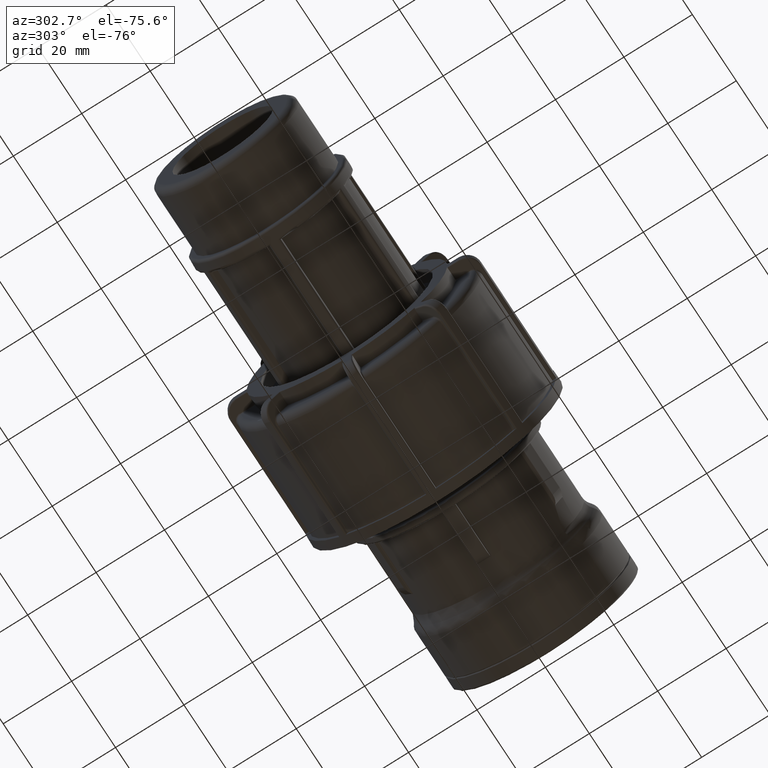
[diagram: clean part render]
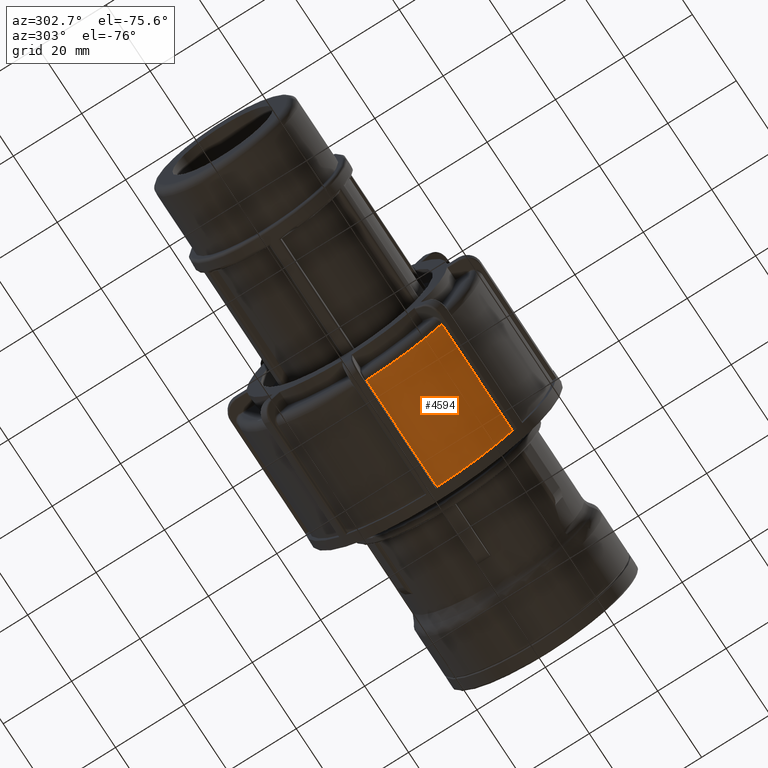
[diagram: same view with one face highlighted and labeled with its STEP entity id]
A machine part, auxiliary view. The second image highlights one B-rep face of the part: STEP entity #4594.
In plain terms, the highlighted cylindrical surface (partial cylindrical patch) has radius 35.599 mm, axis along (1, 0, 0).
Its self-contained STEP definition (entity closure, byte-faithful):
#321=LINE('',#7875,#600);
#342=LINE('',#8138,#621);
#600=VECTOR('',#5764,32.1245);
#621=VECTOR('',#5853,32.1245);
#831=CYLINDRICAL_SURFACE('',#5071,35.599);
#1079=FACE_OUTER_BOUND('',#1365,.T.);
#1365=EDGE_LOOP('',(#4230,#4231,#4232,#4233));
#1696=CIRCLE('',#4868,35.599);
#1796=CIRCLE('',#5072,35.599);
#2100=VERTEX_POINT('',#7859);
#2101=VERTEX_POINT('',#7872);
#2105=VERTEX_POINT('',#7883);
#2130=VERTEX_POINT('',#8136);
#2645=EDGE_CURVE('',#2101,#2100,#321,.T.);
#2651=EDGE_CURVE('',#2105,#2101,#1696,.T.);
#2696=EDGE_CURVE('',#2130,#2105,#342,.T.);
#2934=EDGE_CURVE('',#2100,#2130,#1796,.T.);
#4230=ORIENTED_EDGE('',*,*,#2645,.F.);
#4231=ORIENTED_EDGE('',*,*,#2651,.F.);
#4232=ORIENTED_EDGE('',*,*,#2696,.F.);
#4233=ORIENTED_EDGE('',*,*,#2934,.F.);
#4594=ADVANCED_FACE('',(#1079),#831,.T.);
#4868=AXIS2_PLACEMENT_3D('',#7885,#5774,#5775);
#5071=AXIS2_PLACEMENT_3D('',#9463,#6290,#6291);
#5072=AXIS2_PLACEMENT_3D('',#9464,#6292,#6293);
#5764=DIRECTION('',(-1.,0.,0.));
#5774=DIRECTION('center_axis',(1.,0.,0.));
#5775=DIRECTION('ref_axis',(0.,0.,-1.));
#5853=DIRECTION('',(1.,0.,0.));
#6290=DIRECTION('center_axis',(1.,0.,0.));
#6291=DIRECTION('ref_axis',(0.,1.,0.));
#6292=DIRECTION('center_axis',(-1.,0.,0.));
#6293=DIRECTION('ref_axis',(0.,-1.,1.83697019872103E-16));
#7859=CARTESIAN_POINT('',(-84.3095,-1.8162755102041,-35.5526362492436));
#7872=CARTESIAN_POINT('',(-52.185,-1.8162755102041,-35.5526362492436));
#7875=CARTESIAN_POINT('',(-69.295,-1.8162755102041,-35.5526362492436));
#7883=CARTESIAN_POINT('',(-52.185,-23.8552094511305,-26.4238109106672));
#7885=CARTESIAN_POINT('Origin',(-52.185,0.,0.));
#8136=CARTESIAN_POINT('',(-84.3095,-23.8552094511305,-26.4238109106672));
#8138=CARTESIAN_POINT('',(-69.295,-23.8552094511305,-26.4238109106672));
#9463=CARTESIAN_POINT('Origin',(-69.295,0.,0.));
#9464=CARTESIAN_POINT('Origin',(-84.3095,0.,0.));